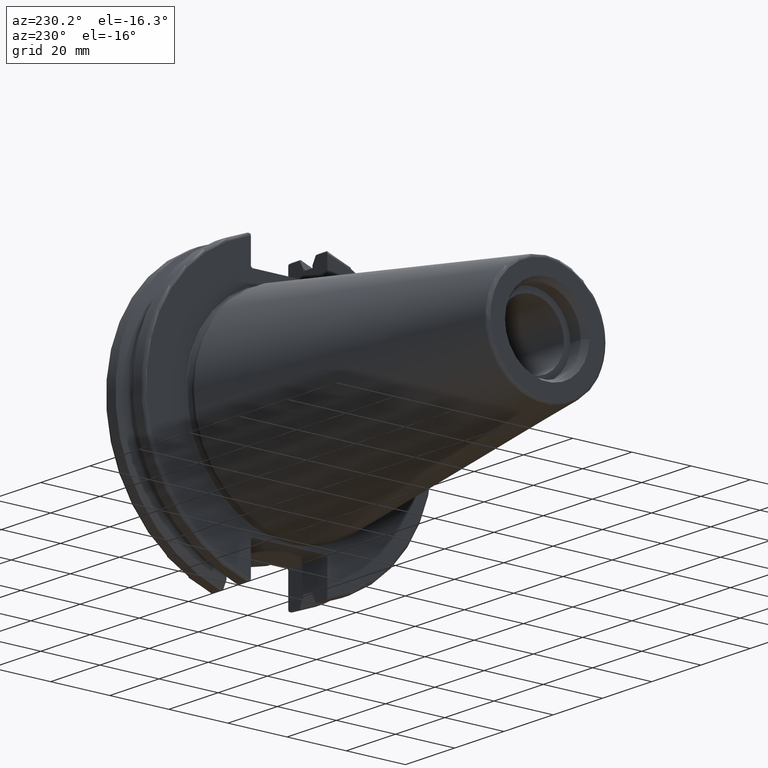
[diagram: clean part render]
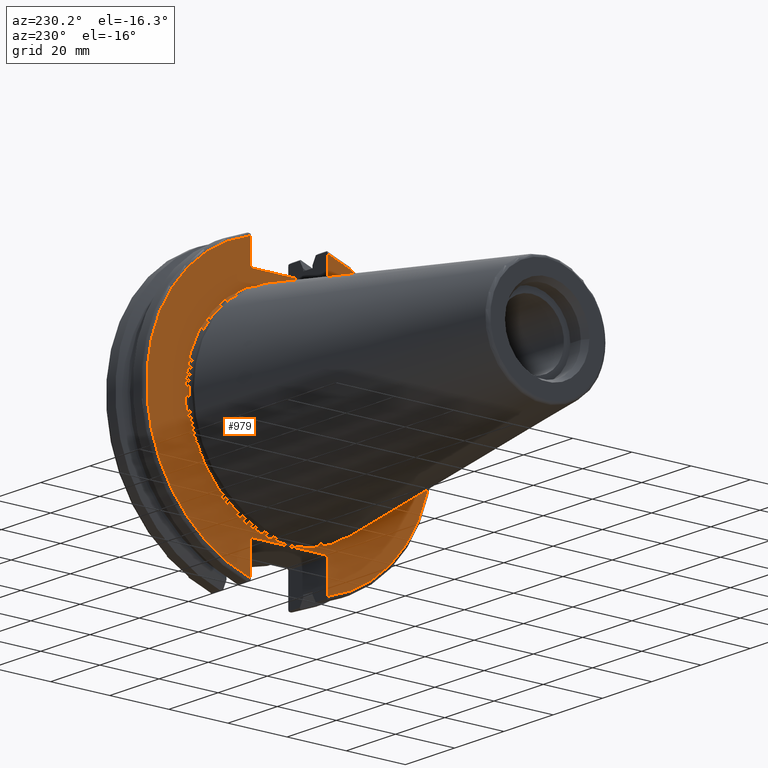
[diagram: same view with one face highlighted and labeled with its STEP entity id]
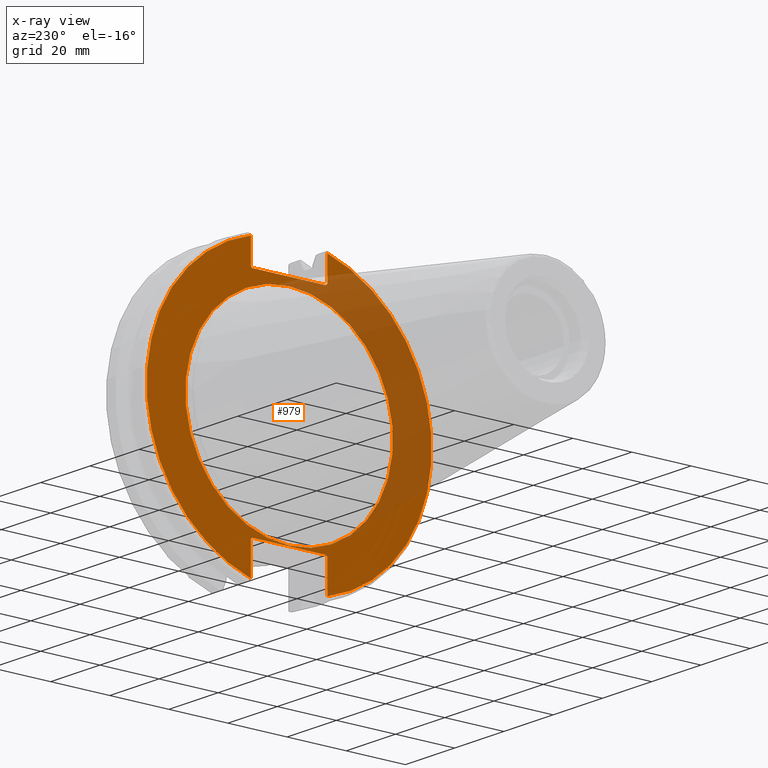
[diagram: x-ray of the same camera — body ghosted, the highlighted face saturated]
A machine part, auxiliary view. The second image highlights one B-rep face of the part: STEP entity #979.
The next image is the same camera in x-ray: the body ghosted, the highlighted face saturated — about 33% of this face is hidden behind the body in this view.
In plain terms, the highlighted planar face has unit normal (-1, 0, 0).
Its self-contained STEP definition (entity closure, byte-faithful):
#33=FACE_BOUND('',#309,.T.);
#39=PLANE('',#1077);
#96=LINE('',#1508,#164);
#97=LINE('',#1510,#165);
#98=LINE('',#1512,#166);
#99=LINE('',#1514,#167);
#100=LINE('',#1516,#168);
#101=LINE('',#1520,#169);
#102=LINE('',#1522,#170);
#103=LINE('',#1524,#171);
#104=LINE('',#1526,#172);
#105=LINE('',#1527,#173);
#164=VECTOR('',#1220,10.);
#165=VECTOR('',#1221,10.);
#166=VECTOR('',#1222,10.);
#167=VECTOR('',#1223,10.);
#168=VECTOR('',#1224,10.);
#169=VECTOR('',#1227,10.);
#170=VECTOR('',#1228,10.);
#171=VECTOR('',#1229,10.);
#172=VECTOR('',#1230,10.);
#173=VECTOR('',#1231,10.);
#249=FACE_OUTER_BOUND('',#308,.T.);
#308=EDGE_LOOP('',(#701,#702,#703,#704,#705,#706,#707,#708,#709,#710,#711,
#712));
#309=EDGE_LOOP('',(#713));
#376=CIRCLE('',#1075,35.125);
#378=CIRCLE('',#1078,48.2125);
#379=CIRCLE('',#1079,48.2125);
#425=VERTEX_POINT('',#1499);
#426=VERTEX_POINT('',#1504);
#427=VERTEX_POINT('',#1505);
#428=VERTEX_POINT('',#1507);
#429=VERTEX_POINT('',#1509);
#430=VERTEX_POINT('',#1511);
#431=VERTEX_POINT('',#1513);
#432=VERTEX_POINT('',#1515);
#433=VERTEX_POINT('',#1517);
#434=VERTEX_POINT('',#1519);
#435=VERTEX_POINT('',#1521);
#436=VERTEX_POINT('',#1523);
#437=VERTEX_POINT('',#1525);
#531=EDGE_CURVE('',#425,#425,#376,.T.);
#533=EDGE_CURVE('',#426,#427,#378,.T.);
#534=EDGE_CURVE('',#426,#428,#96,.T.);
#535=EDGE_CURVE('',#429,#428,#97,.T.);
#536=EDGE_CURVE('',#429,#430,#98,.T.);
#537=EDGE_CURVE('',#431,#430,#99,.T.);
#538=EDGE_CURVE('',#431,#432,#100,.T.);
#539=EDGE_CURVE('',#433,#432,#379,.T.);
#540=EDGE_CURVE('',#433,#434,#101,.T.);
#541=EDGE_CURVE('',#435,#434,#102,.T.);
#542=EDGE_CURVE('',#435,#436,#103,.T.);
#543=EDGE_CURVE('',#437,#436,#104,.T.);
#544=EDGE_CURVE('',#437,#427,#105,.T.);
#701=ORIENTED_EDGE('',*,*,#533,.F.);
#702=ORIENTED_EDGE('',*,*,#534,.T.);
#703=ORIENTED_EDGE('',*,*,#535,.F.);
#704=ORIENTED_EDGE('',*,*,#536,.T.);
#705=ORIENTED_EDGE('',*,*,#537,.F.);
#706=ORIENTED_EDGE('',*,*,#538,.T.);
#707=ORIENTED_EDGE('',*,*,#539,.F.);
#708=ORIENTED_EDGE('',*,*,#540,.T.);
#709=ORIENTED_EDGE('',*,*,#541,.F.);
#710=ORIENTED_EDGE('',*,*,#542,.T.);
#711=ORIENTED_EDGE('',*,*,#543,.F.);
#712=ORIENTED_EDGE('',*,*,#544,.T.);
#713=ORIENTED_EDGE('',*,*,#531,.F.);
#979=ADVANCED_FACE('',(#249,#33),#39,.T.);
#1075=AXIS2_PLACEMENT_3D('',#1501,#1212,#1213);
#1077=AXIS2_PLACEMENT_3D('',#1503,#1216,#1217);
#1078=AXIS2_PLACEMENT_3D('',#1506,#1218,#1219);
#1079=AXIS2_PLACEMENT_3D('',#1518,#1225,#1226);
#1212=DIRECTION('center_axis',(-1.,0.,0.));
#1213=DIRECTION('ref_axis',(0.,-1.,1.83697019872103E-16));
#1216=DIRECTION('center_axis',(-1.,0.,0.));
#1217=DIRECTION('ref_axis',(0.,0.,1.));
#1218=DIRECTION('center_axis',(1.,0.,0.));
#1219=DIRECTION('ref_axis',(0.,-1.,1.60812264967664E-16));
#1220=DIRECTION('',(0.,0.,-1.));
#1221=DIRECTION('',(0.,-0.707106781186549,0.707106781186546));
#1222=DIRECTION('',(0.,1.,0.));
#1223=DIRECTION('',(0.,-0.707106781186549,-0.707106781186546));
#1224=DIRECTION('',(0.,0.,1.));
#1225=DIRECTION('center_axis',(1.,0.,0.));
#1226=DIRECTION('ref_axis',(0.,1.,-6.12323399573677E-17));
#1227=DIRECTION('',(0.,0.,1.));
#1228=DIRECTION('',(0.,0.707106781186549,-0.707106781186546));
#1229=DIRECTION('',(0.,-1.,0.));
#1230=DIRECTION('',(0.,0.707106781186549,0.707106781186546));
#1231=DIRECTION('',(0.,0.,-1.));
#1499=CARTESIAN_POINT('',(3.175,-4.30157188200508E-15,35.125));
#1501=CARTESIAN_POINT('Origin',(3.175,0.,0.));
#1503=CARTESIAN_POINT('Origin',(3.175,49.2125,0.));
#1504=CARTESIAN_POINT('',(3.175,-12.95,46.4407434937254));
#1505=CARTESIAN_POINT('',(3.175,-12.95,-46.4407434937254));
#1506=CARTESIAN_POINT('Origin',(3.175,0.,0.));
#1507=CARTESIAN_POINT('',(3.175,-12.95,38.219));
#1508=CARTESIAN_POINT('',(3.175,-12.95,18.8595));
#1509=CARTESIAN_POINT('',(3.175,-12.45,37.719));
#1510=CARTESIAN_POINT('',(3.175,12.2703750000001,12.998625));
#1511=CARTESIAN_POINT('',(3.175,12.45,37.719));
#1512=CARTESIAN_POINT('',(3.175,24.60625,37.719));
#1513=CARTESIAN_POINT('',(3.175,12.95,38.219));
#1514=CARTESIAN_POINT('',(3.175,12.335875,37.604875));
#1515=CARTESIAN_POINT('',(3.175,12.95,46.4407434937254));
#1516=CARTESIAN_POINT('',(3.175,12.95,18.8595));
#1517=CARTESIAN_POINT('',(3.175,12.95,-46.4407434937254));
#1518=CARTESIAN_POINT('Origin',(3.175,0.,0.));
#1519=CARTESIAN_POINT('',(3.175,12.95,-35.806));
#1520=CARTESIAN_POINT('',(3.175,12.95,-17.653));
#1521=CARTESIAN_POINT('',(3.175,12.45,-35.306));
#1522=CARTESIAN_POINT('',(3.175,12.939125,-35.795125));
#1523=CARTESIAN_POINT('',(3.175,-12.45,-35.306));
#1524=CARTESIAN_POINT('',(3.175,24.60625,-35.306));
#1525=CARTESIAN_POINT('',(3.175,-12.95,-35.806));
#1526=CARTESIAN_POINT('',(3.175,11.6671250000001,-11.188875));
#1527=CARTESIAN_POINT('',(3.175,-12.95,-17.653));